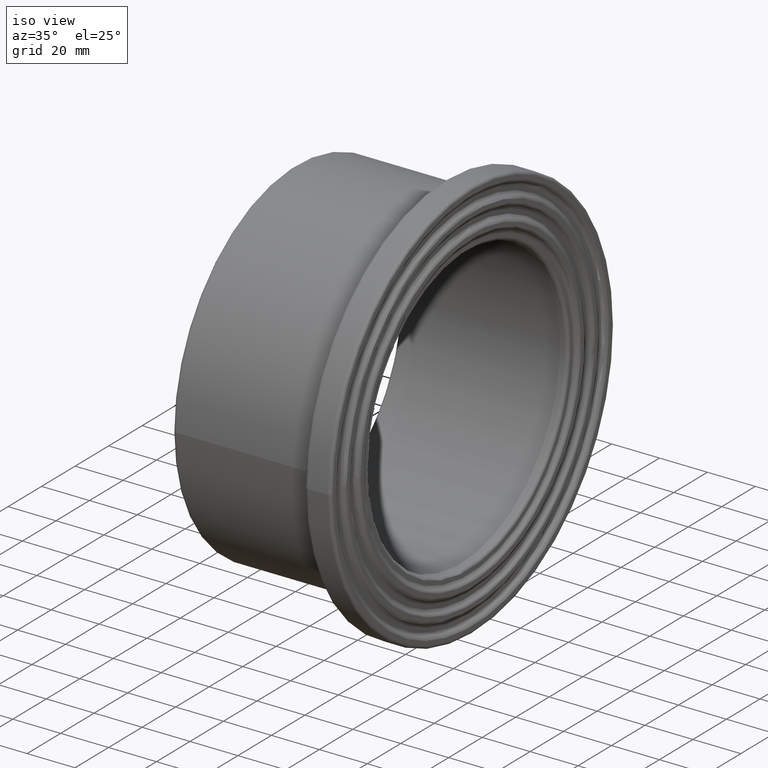
[diagram: clean part render]
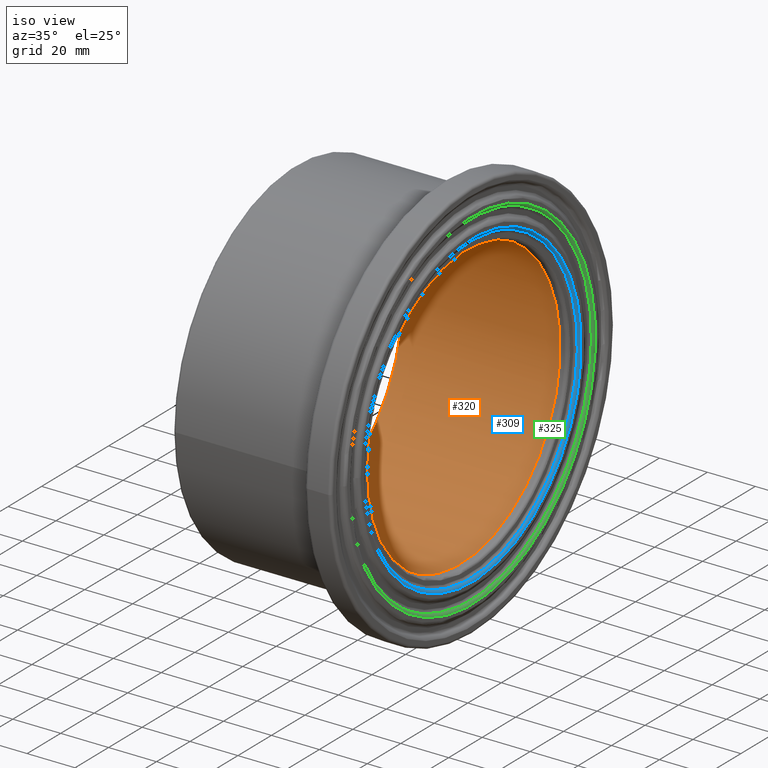
[diagram: same view with three faces highlighted in distinct colors, each labeled with its STEP entity id]
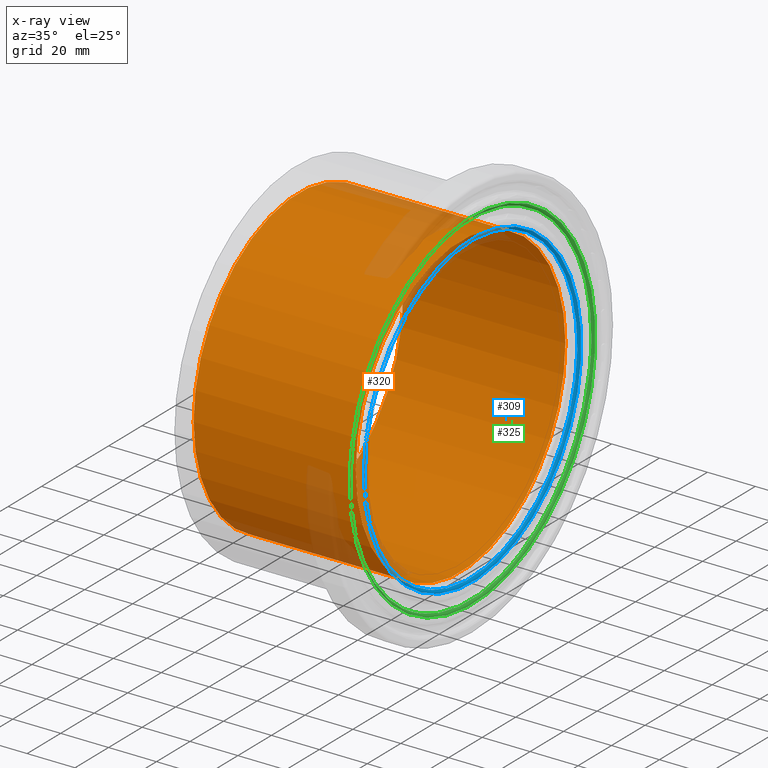
[diagram: x-ray of the same camera — body ghosted, the three highlighted faces saturated]
A machine part, iso view with three faces highlighted in distinct colors.
The next image is the same camera in x-ray (body ghosted, the three faces saturated) — at least one of them is partly hidden behind the body in this view.
Their STEP definitions:

[orange] entity #320 — the highlighted cylindrical surface (bore or boss wall) has radius 62.5 mm, axis along (-1, 0, 0).
#21=CYLINDRICAL_SURFACE('',#361,62.5);
#55=FACE_BOUND('',#122,.T.);
#81=FACE_OUTER_BOUND('',#121,.T.);
#121=EDGE_LOOP('',(#265));
#122=EDGE_LOOP('',(#266));
#157=CIRCLE('',#358,62.5);
#159=CIRCLE('',#362,62.5);
#184=VERTEX_POINT('',#1503);
#186=VERTEX_POINT('',#1509);
#215=EDGE_CURVE('',#184,#184,#157,.T.);
#217=EDGE_CURVE('',#186,#186,#159,.T.);
#265=ORIENTED_EDGE('',*,*,#217,.F.);
#266=ORIENTED_EDGE('',*,*,#215,.F.);
#320=ADVANCED_FACE('',(#81,#55),#21,.F.);
#358=AXIS2_PLACEMENT_3D('',#1504,#429,#430);
#361=AXIS2_PLACEMENT_3D('',#1508,#435,#436);
#362=AXIS2_PLACEMENT_3D('',#1510,#437,#438);
#429=DIRECTION('center_axis',(1.,0.,0.));
#430=DIRECTION('ref_axis',(0.,1.,6.12323399573677E-17));
#435=DIRECTION('center_axis',(-1.,0.,0.));
#436=DIRECTION('ref_axis',(0.,-1.,0.));
#437=DIRECTION('center_axis',(-1.,0.,0.));
#438=DIRECTION('ref_axis',(0.,0.,1.));
#1503=CARTESIAN_POINT('',(1.25,-62.5,-1.14810637420064E-14));
#1504=CARTESIAN_POINT('Origin',(1.25,0.,0.));
#1508=CARTESIAN_POINT('Origin',(34.5,0.,0.));
#1509=CARTESIAN_POINT('',(69.,-62.5,0.));
#1510=CARTESIAN_POINT('Origin',(69.,0.,0.));

[blue] entity #309 — the highlighted toroidal blend (fillet) surface has major radius 64.8125 mm and minor (blend) radius 1.25 mm.
#25=B_SPLINE_CURVE_WITH_KNOTS('',3,(#740,#741,#742,#743,#744,#745,#746,
#747,#748,#749,#750,#751,#752,#753,#754,#755,#756,#757,#758,#759,#760,#761,
#762,#763,#764,#765,#766,#767,#768,#769,#770,#771,#772,#773,#774,#775,#776,
#777,#778,#779,#780,#781),.UNSPECIFIED.,.T.,.F.,(4,1,1,1,1,1,1,1,1,1,1,
1,1,1,1,1,1,1,1,1,1,1,1,1,1,1,1,1,1,1,1,1,1,1,1,1,1,1,1,4),(19.5049828902719,
20.8981959538628,22.2914090174536,23.6846220810445,24.3812286128399,25.0778351446353,
26.4710482082262,27.1676547400216,27.864261271817,28.5608678036125,29.2574743354079,
30.6506873989987,32.0439004625896,32.5083048171199,33.4371135261804,34.365922235241,
35.2947309443016,36.2235396533621,39.9387744896044,40.867583198665,41.7963919077255,
43.1896049713164,44.5828180349072,45.9760310984981,46.6726376302935,47.3692441620889,
48.4141539597821,48.7624572256798,50.1556702892706,50.8522768210661,51.3747317199126,
51.5488833528615,52.9420964164524,54.3353094800432,55.3802192777363,55.7285225436341,
56.4251290754295,57.1217356072249,57.4700388731226,58.5149486708158),
 .UNSPECIFIED.);
#46=FACE_BOUND('',#102,.T.);
#70=FACE_OUTER_BOUND('',#101,.T.);
#101=EDGE_LOOP('',(#239));
#102=EDGE_LOOP('',(#240));
#149=CIRCLE('',#343,64.8125);
#172=VERTEX_POINT('',#738);
#173=VERTEX_POINT('',#783);
#201=EDGE_CURVE('',#172,#172,#25,.T.);
#202=EDGE_CURVE('',#173,#173,#149,.T.);
#239=ORIENTED_EDGE('',*,*,#201,.F.);
#240=ORIENTED_EDGE('',*,*,#202,.T.);
#296=TOROIDAL_SURFACE('',#342,64.8125,1.25);
#309=ADVANCED_FACE('',(#70,#46),#296,.T.);
#342=AXIS2_PLACEMENT_3D('',#782,#397,#398);
#343=AXIS2_PLACEMENT_3D('',#784,#399,#400);
#397=DIRECTION('center_axis',(-1.,0.,0.));
#398=DIRECTION('ref_axis',(0.,0.,1.));
#399=DIRECTION('center_axis',(1.,0.,0.));
#400=DIRECTION('ref_axis',(0.,1.,6.12323399573677E-17));
#738=CARTESIAN_POINT('',(73.175,-63.6369472349589,-0.0516623305735596));
#740=CARTESIAN_POINT('Ctrl Pts',(73.175,-63.6383573117378,-0.0522771091665656));
#741=CARTESIAN_POINT('Ctrl Pts',(73.175,-63.638111239515,-4.78813775436298));
#742=CARTESIAN_POINT('Ctrl Pts',(73.175,-62.5339785406439,-14.3918921030262));
#743=CARTESIAN_POINT('Ctrl Pts',(73.175,-57.8092433540628,-27.8648057274477));
#744=CARTESIAN_POINT('Ctrl Pts',(73.175,-51.3820140251178,-38.0743464667625));
#745=CARTESIAN_POINT('Ctrl Pts',(73.175,-45.0485680282357,-45.1323562428772));
#746=CARTESIAN_POINT('Ctrl Pts',(73.175,-37.9286558639049,-51.4922843216048));
#747=CARTESIAN_POINT('Ctrl Pts',(73.1750000000001,-29.7711546690913,-56.5952426525048));
#748=CARTESIAN_POINT('Ctrl Pts',(73.175,-21.0121279750629,-60.2066210574949));
#749=CARTESIAN_POINT('Ctrl Pts',(73.175,-14.1013101557481,-62.1969303867704));
#750=CARTESIAN_POINT('Ctrl Pts',(73.175,-7.02285509468721,-63.378552902821));
#751=CARTESIAN_POINT('Ctrl Pts',(73.1750000000001,2.43139856516612,-63.9046030448527));
#752=CARTESIAN_POINT('Ctrl Pts',(73.1749999999999,14.4139603451737,-62.5374046289601));
#753=CARTESIAN_POINT('Ctrl Pts',(73.1750000000001,24.8948945270258,-58.8420277336913));
#754=CARTESIAN_POINT('Ctrl Pts',(73.175,33.3396738009401,-54.371567609447));
#755=CARTESIAN_POINT('Ctrl Pts',(73.1749999999999,39.9296096329166,-49.8511511391394));
#756=CARTESIAN_POINT('Ctrl Pts',(73.1750000000001,46.8726986895407,-43.3966086411483));
#757=CARTESIAN_POINT('Ctrl Pts',(73.175,52.8461392445271,-35.8732097624421));
#758=CARTESIAN_POINT('Ctrl Pts',(73.1749999999999,62.3694316147808,-19.3356590623035));
#759=CARTESIAN_POINT('Ctrl Pts',(73.1750000000001,65.3277122823621,0.14531110694774));
#760=CARTESIAN_POINT('Ctrl Pts',(73.175,61.0179112624236,18.8653947191592));
#761=CARTESIAN_POINT('Ctrl Pts',(73.1750000000001,56.9876526455839,29.1678511655095));
#762=CARTESIAN_POINT('Ctrl Pts',(73.1749999999999,50.1350443144534,40.0565287967013));
#763=CARTESIAN_POINT('Ctrl Pts',(73.1750000000001,40.0328612282968,50.1526649579259));
#764=CARTESIAN_POINT('Ctrl Pts',(73.1749999999999,29.8174339965167,56.5780234196308));
#765=CARTESIAN_POINT('Ctrl Pts',(73.1750000000001,21.0642315321235,60.1862111390325));
#766=CARTESIAN_POINT('Ctrl Pts',(73.175,13.0212807376705,62.5130552226279));
#767=CARTESIAN_POINT('Ctrl Pts',(73.175,5.89209413250334,63.5062819693467));
#768=CARTESIAN_POINT('Ctrl Pts',(73.175,-3.57103471856069,63.7699624258464));
#769=CARTESIAN_POINT('Ctrl Pts',(73.175,-11.9380889527846,62.8287176857388));
#770=CARTESIAN_POINT('Ctrl Pts',(73.175,-20.5462384579065,60.3368728021005));
#771=CARTESIAN_POINT('Ctrl Pts',(73.175,-24.9393532862804,58.5848702613468));
#772=CARTESIAN_POINT('Ctrl Pts',(73.175,-31.4111209313573,55.5811600680709));
#773=CARTESIAN_POINT('Ctrl Pts',(73.175,-40.0796833125122,50.1158872539691));
#774=CARTESIAN_POINT('Ctrl Pts',(73.175,-49.3261807027676,40.8543489652817));
#775=CARTESIAN_POINT('Ctrl Pts',(73.1750000000001,-54.6746258914337,32.8504725975673));
#776=CARTESIAN_POINT('Ctrl Pts',(73.175,-57.9341793232962,26.5132812060751));
#777=CARTESIAN_POINT('Ctrl Pts',(73.175,-60.2009615237072,21.0376134888071));
#778=CARTESIAN_POINT('Ctrl Pts',(73.175,-61.8548275385535,15.2858604812293));
#779=CARTESIAN_POINT('Ctrl Pts',(73.175,-63.2469359117215,8.25127471252891));
#780=CARTESIAN_POINT('Ctrl Pts',(73.175,-63.6385418659049,3.49961837473075));
#781=CARTESIAN_POINT('Ctrl Pts',(73.175,-63.6383573117378,-0.0522771091665656));
#782=CARTESIAN_POINT('Origin',(72.75,0.,0.));
#783=CARTESIAN_POINT('',(74.,-64.8125,-1.19058631004607E-14));
#784=CARTESIAN_POINT('Origin',(74.,0.,0.));

[green] entity #325 — the highlighted toroidal blend (fillet) surface has major radius 73.1875 mm and minor (blend) radius 1.25 mm.
#33=B_SPLINE_CURVE_WITH_KNOTS('',3,(#2132,#2133,#2134,#2135,#2136,#2137,
#2138,#2139,#2140,#2141,#2142,#2143,#2144,#2145,#2146,#2147,#2148,#2149,
#2150,#2151,#2152,#2153,#2154,#2155,#2156,#2157,#2158,#2159,#2160,#2161,
#2162,#2163,#2164,#2165,#2166,#2167,#2168,#2169,#2170,#2171,#2172,#2173,
#2174,#2175,#2176,#2177,#2178,#2179,#2180,#2181,#2182,#2183),
 .UNSPECIFIED.,.T.,.F.,(4,1,1,1,1,1,1,1,1,1,1,1,1,1,1,1,1,1,1,1,1,1,1,1,
1,1,1,1,1,1,1,1,1,1,1,1,1,1,1,1,1,1,1,1,1,1,1,1,1,4),(22.1202642717537,
23.7002831483075,25.2803020248613,26.8603209014152,27.6503303396921,28.440339777969,
29.2303492162459,30.4153633736613,31.6003775310767,32.3903869693536,33.1803964076305,
33.5754011267689,34.5629129246151,34.7604152841843,36.8671071195894,37.920453037292,
38.1837895167176,38.9737989549945,40.0271448726971,41.0804907903997,41.2121590301125,
41.6071637492509,43.1871826258048,45.2938744612099,46.3472203789124,46.6105568583381,
47.400566296615,48.9805851731688,49.968096971015,50.5606040497226,50.9556087688611,
52.1406229262765,52.9306323645534,53.7206418028303,54.9056559602457,55.6956653985226,
56.880679555938,57.1769330952918,57.6706889942149,57.9669425335687,58.4606984324918,
60.0407173090456,60.6332243877533,61.6207361855995,62.0157409047379,63.2007550621533,
63.9907645004302,64.7807739387071,65.1757786578456,66.360792815261),
 .UNSPECIFIED.);
#58=FACE_BOUND('',#130,.T.);
#86=FACE_OUTER_BOUND('',#129,.T.);
#129=EDGE_LOOP('',(#279));
#130=EDGE_LOOP('',(#280));
#155=CIRCLE('',#355,73.1875);
#182=VERTEX_POINT('',#1498);
#190=VERTEX_POINT('',#2130);
#213=EDGE_CURVE('',#182,#182,#155,.T.);
#223=EDGE_CURVE('',#190,#190,#33,.T.);
#279=ORIENTED_EDGE('',*,*,#223,.F.);
#280=ORIENTED_EDGE('',*,*,#213,.T.);
#301=TOROIDAL_SURFACE('',#368,73.1875,1.25);
#325=ADVANCED_FACE('',(#86,#58),#301,.T.);
#355=AXIS2_PLACEMENT_3D('',#1499,#423,#424);
#368=AXIS2_PLACEMENT_3D('',#2184,#449,#450);
#423=DIRECTION('center_axis',(1.,0.,0.));
#424=DIRECTION('ref_axis',(0.,1.,6.12323399573677E-17));
#449=DIRECTION('center_axis',(-1.,0.,0.));
#450=DIRECTION('ref_axis',(0.,0.,1.));
#1498=CARTESIAN_POINT('',(74.,-73.1875,-1.34443256418895E-14));
#1499=CARTESIAN_POINT('Origin',(74.,0.,0.));
#2130=CARTESIAN_POINT('',(73.175,-72.0119444751188,-0.0584613977001204));
#2132=CARTESIAN_POINT('Ctrl Pts',(73.175,-72.0137952176148,-0.0588685438045313));
#2133=CARTESIAN_POINT('Ctrl Pts',(73.1749999999999,-72.0159391434612,-5.41489364979227));
#2134=CARTESIAN_POINT('Ctrl Pts',(73.1750000000001,-70.7630244522894,-16.2874596065923));
#2135=CARTESIAN_POINT('Ctrl Pts',(73.1749999999998,-65.4162483738836,-31.532748031414));
#2136=CARTESIAN_POINT('Ctrl Pts',(73.1750000000001,-58.1473892429811,-43.0832031953494));
#2137=CARTESIAN_POINT('Ctrl Pts',(73.175,-50.972307494447,-51.0752950669529));
#2138=CARTESIAN_POINT('Ctrl Pts',(73.175,-44.9461876406578,-56.4619365914123));
#2139=CARTESIAN_POINT('Ctrl Pts',(73.175,-37.1780399677711,-61.9507693494968));
#2140=CARTESIAN_POINT('Ctrl Pts',(73.175,-27.6258464653485,-66.8684216233625));
#2141=CARTESIAN_POINT('Ctrl Pts',(73.175,-17.3010443734767,-70.1529988722283));
#2142=CARTESIAN_POINT('Ctrl Pts',(73.175,-7.94682897850297,-71.7240570587317));
#2143=CARTESIAN_POINT('Ctrl Pts',(73.1749999999999,-1.25684320285074,-72.0877707667676));
#2144=CARTESIAN_POINT('Ctrl Pts',(73.1750000000001,6.14093110917136,-71.8739718010243));
#2145=CARTESIAN_POINT('Ctrl Pts',(73.175,11.5290658497998,-71.182412419427));
#2146=CARTESIAN_POINT('Ctrl Pts',(73.175,22.5164192148465,-68.8163328404304));
#2147=CARTESIAN_POINT('Ctrl Pts',(73.175,33.2215995193964,-64.6004955992583));
#2148=CARTESIAN_POINT('Ctrl Pts',(73.1750000000001,42.9599730318505,-57.9445315219235));
#2149=CARTESIAN_POINT('Ctrl Pts',(73.175,48.4526528810864,-53.3685319929893));
#2150=CARTESIAN_POINT('Ctrl Pts',(73.1750000000001,53.6072527983647,-48.3950347831034));
#2151=CARTESIAN_POINT('Ctrl Pts',(73.175,59.8034355291276,-40.6021385200324));
#2152=CARTESIAN_POINT('Ctrl Pts',(73.1750000000001,63.6171026713508,-33.9580451396416));
#2153=CARTESIAN_POINT('Ctrl Pts',(73.175,65.8856798384384,-29.1096139297479));
#2154=CARTESIAN_POINT('Ctrl Pts',(73.175,68.6794262872975,-22.5144970628392));
#2155=CARTESIAN_POINT('Ctrl Pts',(73.175,72.2720153819279,-9.03994315426291));
#2156=CARTESIAN_POINT('Ctrl Pts',(73.175,72.2838323461945,7.22566007001764));
#2157=CARTESIAN_POINT('Ctrl Pts',(73.1749999999999,69.665646711578,18.6977827961984));
#2158=CARTESIAN_POINT('Ctrl Pts',(73.1750000000001,67.4147291066447,25.516786413164));
#2159=CARTESIAN_POINT('Ctrl Pts',(73.1749999999999,64.007576170611,33.7683065357186));
#2160=CARTESIAN_POINT('Ctrl Pts',(73.175,57.8236103715143,43.6039707782177));
#2161=CARTESIAN_POINT('Ctrl Pts',(73.175,50.5400996292277,51.5099826881744));
#2162=CARTESIAN_POINT('Ctrl Pts',(73.1749999999999,45.4633175209787,55.9241419380313));
#2163=CARTESIAN_POINT('Ctrl Pts',(73.1750000000001,39.5187588176856,60.3978777037722));
#2164=CARTESIAN_POINT('Ctrl Pts',(73.1749999999999,32.5045408137594,64.525588550856));
#2165=CARTESIAN_POINT('Ctrl Pts',(73.1750000000001,23.8372670024056,68.1105574190321));
#2166=CARTESIAN_POINT('Ctrl Pts',(73.1749999999999,14.7319666310548,70.7383678993123));
#2167=CARTESIAN_POINT('Ctrl Pts',(73.1750000000001,5.32960761819457,72.0521539009607));
#2168=CARTESIAN_POINT('Ctrl Pts',(73.175,-5.39056701989206,72.0485318500079));
#2169=CARTESIAN_POINT('Ctrl Pts',(73.175,-13.1333879424419,70.9581108217451));
#2170=CARTESIAN_POINT('Ctrl Pts',(73.175,-19.6772735894693,69.3110238220722));
#2171=CARTESIAN_POINT('Ctrl Pts',(73.175,-23.2189627341246,68.2073471759472));
#2172=CARTESIAN_POINT('Ctrl Pts',(73.175,-27.2937210854491,66.6792376850507));
#2173=CARTESIAN_POINT('Ctrl Pts',(73.1750000000001,-34.6718736146227,63.4436688496658));
#2174=CARTESIAN_POINT('Ctrl Pts',(73.1749999999999,-42.4779323455617,58.5284897316774));
#2175=CARTESIAN_POINT('Ctrl Pts',(73.1750000000001,-50.5812468448838,51.4702435319029));
#2176=CARTESIAN_POINT('Ctrl Pts',(73.175,-55.1314700973348,46.5189406420003));
#2177=CARTESIAN_POINT('Ctrl Pts',(73.175,-60.4210414003725,39.4840206020698));
#2178=CARTESIAN_POINT('Ctrl Pts',(73.1750000000001,-64.5372313145838,32.4791359634266));
#2179=CARTESIAN_POINT('Ctrl Pts',(73.1749999999999,-68.1218823964537,23.8072648604065));
#2180=CARTESIAN_POINT('Ctrl Pts',(73.1750000000001,-69.9956499855131,17.2969946612131));
#2181=CARTESIAN_POINT('Ctrl Pts',(73.1749999999999,-71.5709004442989,9.33794781894387));
#2182=CARTESIAN_POINT('Ctrl Pts',(73.1750000000001,-72.0121872732299,3.9581502856863));
#2183=CARTESIAN_POINT('Ctrl Pts',(73.175,-72.0137952176148,-0.0588685438045313));
#2184=CARTESIAN_POINT('Origin',(72.75,0.,0.));